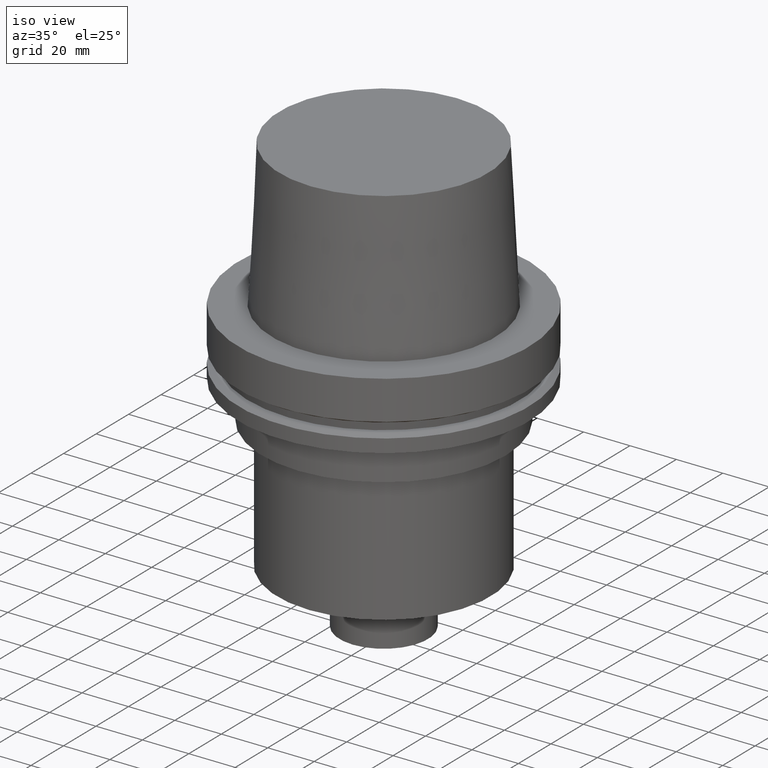
[diagram: clean part render]
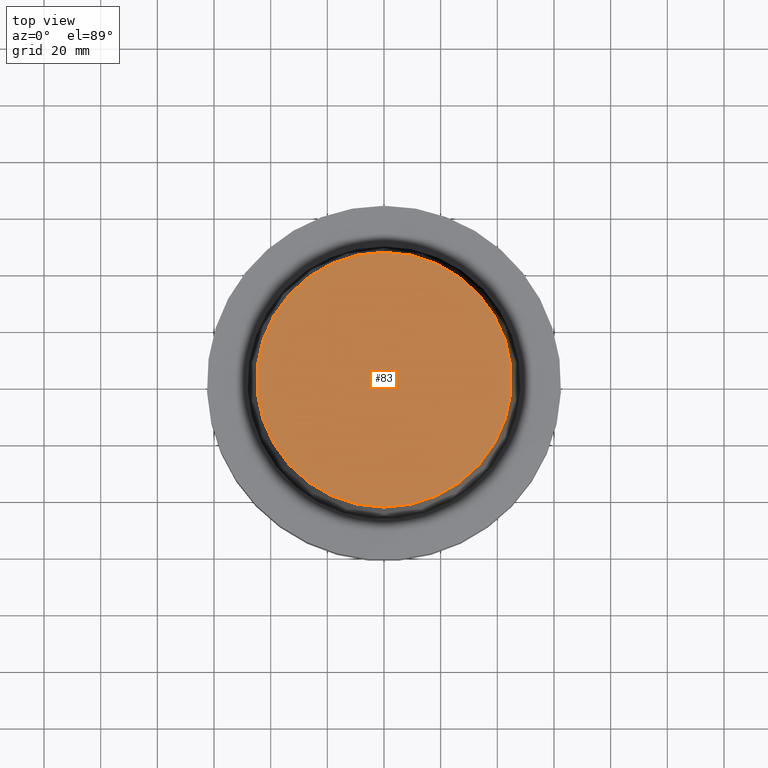
[diagram: tour spotlight — one face highlighted and labeled with its STEP entity id]
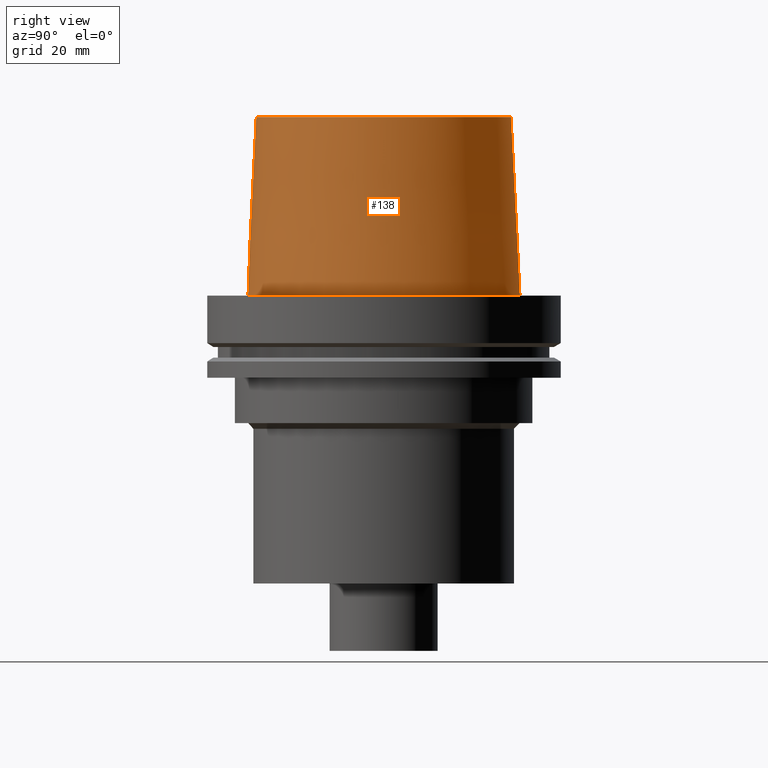
[diagram: tour spotlight — one face highlighted and labeled with its STEP entity id]
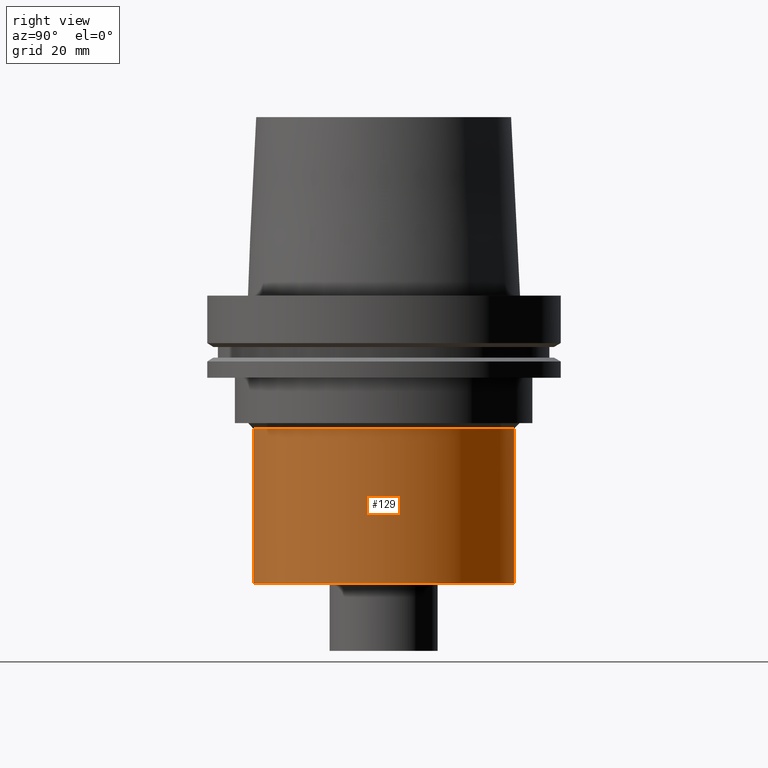
[diagram: tour spotlight — one face highlighted and labeled with its STEP entity id]
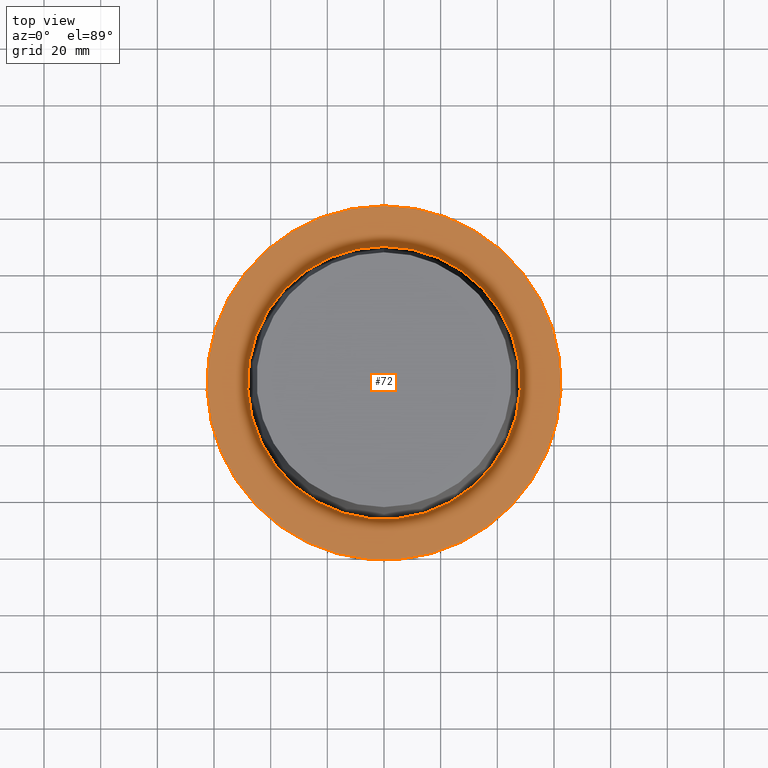
[diagram: tour spotlight — one face highlighted and labeled with its STEP entity id]
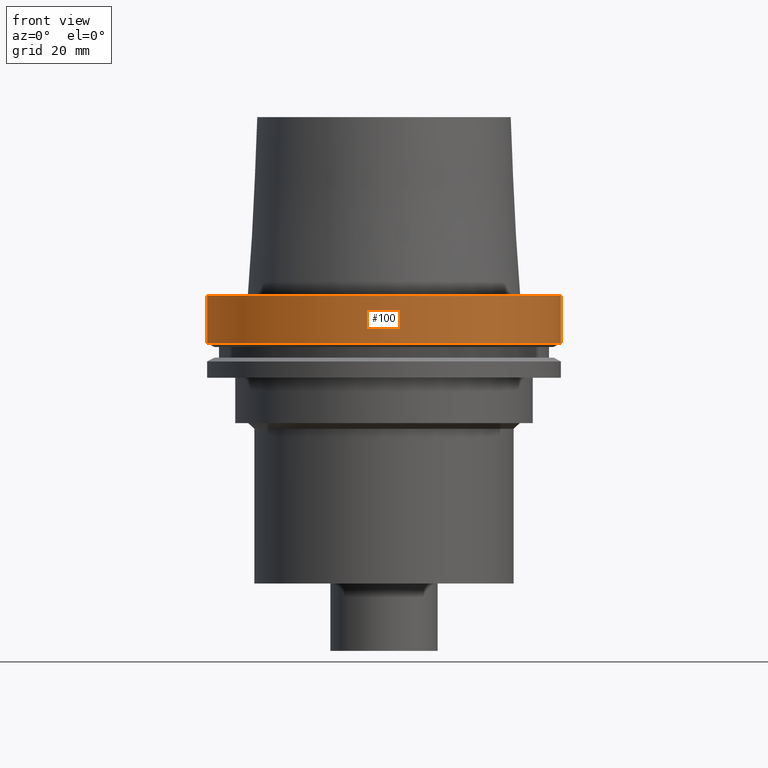
[diagram: tour spotlight — one face highlighted and labeled with its STEP entity id]
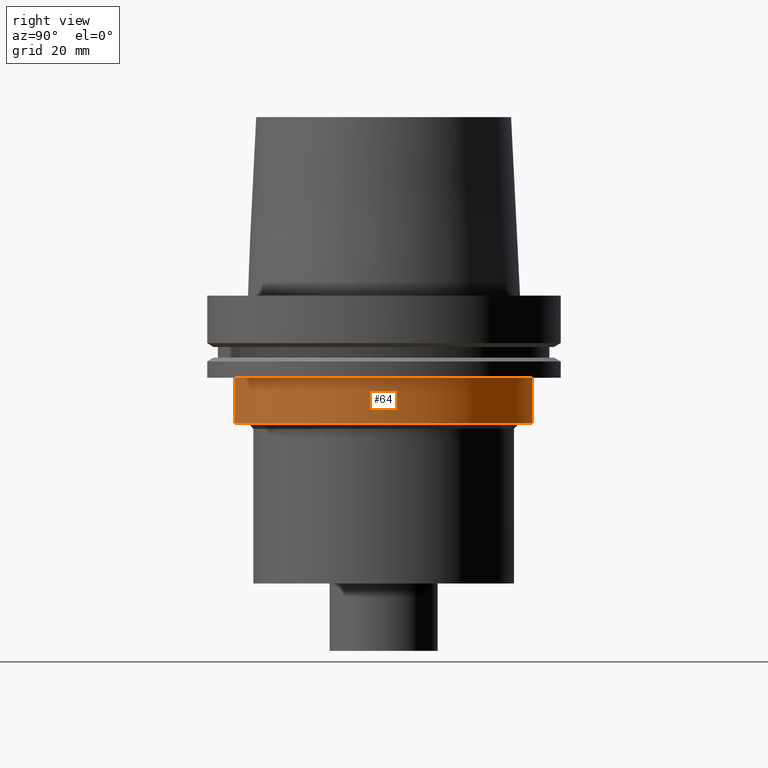
[diagram: tour spotlight — one face highlighted and labeled with its STEP entity id]
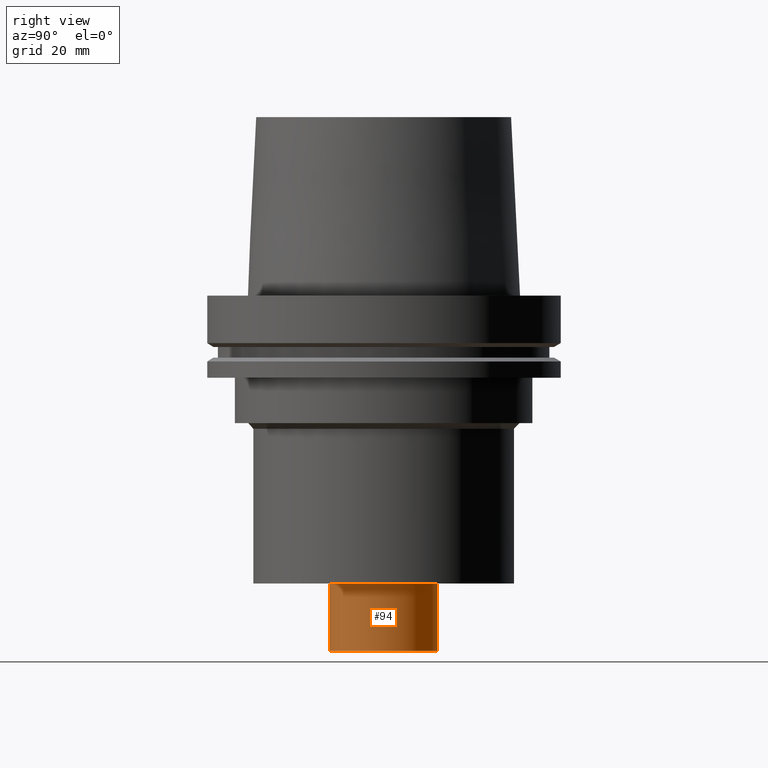
[diagram: tour spotlight — one face highlighted and labeled with its STEP entity id]
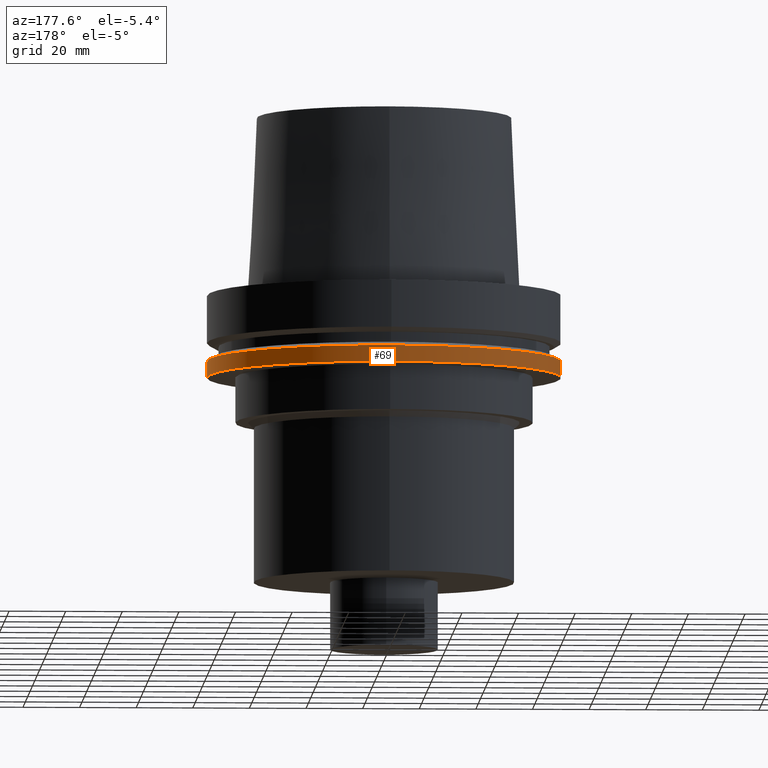
[diagram: tour spotlight — one face highlighted and labeled with its STEP entity id]
A machine part: a face-by-face anatomy tour. The part has 18 B-rep faces; the first image is the clean iso view, then the 8 largest visible faces are spotlighted one at a time (largest first), each with its STEP entity span.

Face 1 — top view, entity #83. In plain terms, the highlighted planar face has unit normal (-0, -0, 1).
Definition (entity closure, byte-faithful):
#83=ADVANCED_FACE('Unnamed[1]',(#202),#203,.T.);
#149=EDGE_CURVE('Unnamed[1]',#306,#306,#307,.T.);
#202=FACE_OUTER_BOUND('',#358,.T.);
#203=PLANE('',#359);
#306=VERTEX_POINT('',#489);
#307=CIRCLE('',#490,44.9779398797591);
#358=EDGE_LOOP('',(#530));
#359=AXIS2_PLACEMENT_3D('',#531,#532,#533);
#489=CARTESIAN_POINT('',(-3.85763741731416E-015,44.9779398797591,62.9999999999999));
#490=AXIS2_PLACEMENT_3D('',#647,#648,#649);
#530=ORIENTED_EDGE('',*,*,#149,.F.);
#531=CARTESIAN_POINT('',(-3.85763741731416E-015,22.4889699398795,62.9999999999999));
#532=DIRECTION('',(-6.12323399573677E-017,-1.22464679914735E-016,1.0));
#533=DIRECTION('',(1.23259516440783E-032,-1.0,-1.22464679914735E-016));
#647=CARTESIAN_POINT('',(-3.85763741731416E-015,-7.71527483462831E-015,62.9999999999999));
#648=DIRECTION('',(6.12323399573677E-017,1.22464679914719E-016,-1.0));
#649=DIRECTION('',(-1.23259516440771E-032,1.0,1.22464679914719E-016));

Face 2 — right view, entity #138. In plain terms, the highlighted conical surface has half-angle 2.868 deg.
Definition (entity closure, byte-faithful):
#133=EDGE_CURVE('Unnamed[1]',#281,#281,#282,.T.);
#138=ADVANCED_FACE('Unnamed[1]',(#288,#289),#290,.T.);
#149=EDGE_CURVE('Unnamed[1]',#306,#306,#307,.T.);
#281=VERTEX_POINT('',#457);
#282=CIRCLE('',#458,48.1342525050097);
#288=FACE_BOUND('',#466,.T.);
#289=FACE_BOUND('',#467,.T.);
#290=CONICAL_SURFACE('',#468,46.5560961923844,0.0500583457465964);
#306=VERTEX_POINT('',#489);
#307=CIRCLE('',#490,44.9779398797591);
#457=CARTESIAN_POINT('',(3.88342032297484E-029,48.1342525050097,-6.38005254174039E-013));
#458=AXIS2_PLACEMENT_3D('',#620,#621,#622);
#466=EDGE_LOOP('',(#627));
#467=EDGE_LOOP('',(#628));
#468=AXIS2_PLACEMENT_3D('',#629,#630,#631);
#489=CARTESIAN_POINT('',(-3.85763741731416E-015,44.9779398797591,62.9999999999999));
#490=AXIS2_PLACEMENT_3D('',#647,#648,#649);
#620=CARTESIAN_POINT('',(3.91573749152705E-029,7.83147498305409E-029,-6.3948846218409E-013));
#621=DIRECTION('',(6.12323399573677E-017,1.22464679914742E-016,-1.0));
#622=DIRECTION('',(-1.23259516440755E-032,1.0,1.22464679914742E-016));
#627=ORIENTED_EDGE('',*,*,#133,.F.);
#628=ORIENTED_EDGE('',*,*,#149,.T.);
#629=CARTESIAN_POINT('',(-1.92881870865706E-015,-3.85763741731411E-015,31.4999999999996));
#630=DIRECTION('',(6.12323399573676E-017,1.22464679914766E-016,-1.0));
#631=DIRECTION('',(-1.23259516440801E-032,1.0,1.22464679914766E-016));
#647=CARTESIAN_POINT('',(-3.85763741731416E-015,-7.71527483462831E-015,62.9999999999999));
#648=DIRECTION('',(6.12323399573677E-017,1.22464679914719E-016,-1.0));
#649=DIRECTION('',(-1.23259516440771E-032,1.0,1.22464679914719E-016));

Face 3 — right view, entity #129. In plain terms, the highlighted cylindrical surface (bore or boss wall) has radius 46 mm, axis along (0, 0, -1).
Definition (entity closure, byte-faithful):
#88=EDGE_CURVE('Unnamed[1]',#210,#210,#211,.T.);
#122=EDGE_CURVE('Unnamed[1]',#264,#264,#265,.T.);
#129=ADVANCED_FACE('Unnamed[1]',(#274,#275),#276,.T.);
#210=VERTEX_POINT('',#368);
#211=CIRCLE('',#369,45.9999999999999);
#264=VERTEX_POINT('',#435);
#265=CIRCLE('',#436,45.9999999999999);
#274=FACE_BOUND('',#448,.T.);
#275=FACE_BOUND('',#449,.T.);
#276=CYLINDRICAL_SURFACE('',#450,45.9999999999999);
#368=CARTESIAN_POINT('',(6.22120573966853E-015,46.0,-101.6));
#369=AXIS2_PLACEMENT_3D('',#540,#541,#542);
#435=CARTESIAN_POINT('',(2.87791997799629E-015,45.9999999999999,-47.0000000000001));
#436=AXIS2_PLACEMENT_3D('',#602,#603,#604);
#448=EDGE_LOOP('',(#612));
#449=EDGE_LOOP('',(#613));
#450=AXIS2_PLACEMENT_3D('',#614,#615,#616);
#540=CARTESIAN_POINT('',(6.22120573966853E-015,1.24424114793371E-014,-101.6));
#541=DIRECTION('',(6.12323399573676E-017,1.22464679914717E-016,-1.0));
#542=DIRECTION('',(-1.23259516440783E-032,1.0,1.22464679914717E-016));
#602=CARTESIAN_POINT('',(2.87791997799629E-015,5.75583995599257E-015,-47.0000000000001));
#603=DIRECTION('',(6.12323399573676E-017,1.22464679914717E-016,-1.0));
#604=DIRECTION('',(-1.23259516440783E-032,1.0,1.22464679914717E-016));
#612=ORIENTED_EDGE('',*,*,#88,.F.);
#613=ORIENTED_EDGE('',*,*,#122,.T.);
#614=CARTESIAN_POINT('',(4.54956285883241E-015,9.09912571766482E-015,-74.2999999999999));
#615=DIRECTION('',(6.12323399573677E-017,1.22464679914717E-016,-1.0));
#616=DIRECTION('',(-1.23259516440783E-032,1.0,1.22464679914717E-016));

Face 4 — top view, entity #72. In plain terms, the highlighted planar face has unit normal (-0, -0, 1).
Definition (entity closure, byte-faithful):
#72=ADVANCED_FACE('Unnamed[1]',(#186,#187),#188,.T.);
#120=EDGE_CURVE('Unnamed[1]',#261,#261,#262,.T.);
#133=EDGE_CURVE('Unnamed[1]',#281,#281,#282,.T.);
#186=FACE_OUTER_BOUND('',#339,.T.);
#187=FACE_BOUND('',#340,.T.);
#188=PLANE('',#341);
#261=VERTEX_POINT('',#431);
#262=CIRCLE('',#432,62.5000000000002);
#281=VERTEX_POINT('',#457);
#282=CIRCLE('',#458,48.1342525050097);
#339=EDGE_LOOP('',(#514));
#340=EDGE_LOOP('',(#515));
#341=AXIS2_PLACEMENT_3D('',#516,#517,#518);
#431=CARTESIAN_POINT('',(-5.58935713239973E-030,62.5000000000002,8.63540424946709E-014));
#432=AXIS2_PLACEMENT_3D('',#599,#600,#601);
#457=CARTESIAN_POINT('',(3.88342032297484E-029,48.1342525050097,-6.38005254174039E-013));
#458=AXIS2_PLACEMENT_3D('',#620,#621,#622);
#514=ORIENTED_EDGE('',*,*,#120,.F.);
#515=ORIENTED_EDGE('',*,*,#133,.T.);
#516=CARTESIAN_POINT('',(1.66224230486744E-029,55.317126252505,-2.75825605839684E-013));
#517=DIRECTION('',(-6.12323399573677E-017,-5.04226666187264E-014,1.0));
#518=DIRECTION('',(3.09232501668564E-030,-1.0,-5.04226666187264E-014));
#599=CARTESIAN_POINT('',(-5.22098332203606E-030,-1.04419666440721E-029,8.5265128291212E-014));
#600=DIRECTION('',(6.12323399573677E-017,1.22464679914723E-016,-1.0));
#601=DIRECTION('',(-1.23259516440783E-032,1.0,1.22464679914723E-016));
#620=CARTESIAN_POINT('',(3.91573749152705E-029,7.83147498305409E-029,-6.3948846218409E-013));
#621=DIRECTION('',(6.12323399573677E-017,1.22464679914742E-016,-1.0));
#622=DIRECTION('',(-1.23259516440755E-032,1.0,1.22464679914742E-016));

Face 5 — front view, entity #100. In plain terms, the highlighted cylindrical surface (bore or boss wall) has radius 62.5 mm, axis along (0, 0, -1).
Definition (entity closure, byte-faithful):
#100=ADVANCED_FACE('Unnamed[1]',(#229,#230),#231,.T.);
#120=EDGE_CURVE('Unnamed[1]',#261,#261,#262,.T.);
#140=EDGE_CURVE('Unnamed[1]',#292,#292,#293,.T.);
#229=FACE_BOUND('',#391,.T.);
#230=FACE_BOUND('',#392,.T.);
#231=CYLINDRICAL_SURFACE('',#393,62.5000000000001);
#261=VERTEX_POINT('',#431);
#262=CIRCLE('',#432,62.5000000000002);
#292=VERTEX_POINT('',#471);
#293=CIRCLE('',#472,62.5);
#391=EDGE_LOOP('',(#562));
#392=EDGE_LOOP('',(#563));
#393=AXIS2_PLACEMENT_3D('',#564,#565,#566);
#431=CARTESIAN_POINT('',(-5.58935713239973E-030,62.5000000000002,8.63540424946709E-014));
#432=AXIS2_PLACEMENT_3D('',#599,#600,#601);
#471=CARTESIAN_POINT('',(1.02578894188644E-015,62.5,-16.7524047358084));
#472=AXIS2_PLACEMENT_3D('',#632,#633,#634);
#562=ORIENTED_EDGE('',*,*,#140,.F.);
#563=ORIENTED_EDGE('',*,*,#120,.T.);
#564=CARTESIAN_POINT('',(5.12894470943215E-016,1.02578894188643E-015,-8.37620236790416));
#565=DIRECTION('',(6.12323399573677E-017,1.22464679914723E-016,-1.0));
#566=DIRECTION('',(-1.23259516440783E-032,1.0,1.22464679914723E-016));
#599=CARTESIAN_POINT('',(-5.22098332203606E-030,-1.04419666440721E-029,8.5265128291212E-014));
#600=DIRECTION('',(6.12323399573677E-017,1.22464679914723E-016,-1.0));
#601=DIRECTION('',(-1.23259516440783E-032,1.0,1.22464679914723E-016));
#632=CARTESIAN_POINT('',(1.02578894188644E-015,2.05157788377287E-015,-16.7524047358084));
#633=DIRECTION('',(6.12323399573676E-017,1.22464679914723E-016,-1.0));
#634=DIRECTION('',(-1.23259516440783E-032,1.0,1.22464679914723E-016));

Face 6 — right view, entity #64. In plain terms, the highlighted cylindrical surface (bore or boss wall) has radius 52.5 mm, axis along (0, 0, -1).
Definition (entity closure, byte-faithful):
#64=ADVANCED_FACE('Unnamed[1]',(#173,#174),#175,.T.);
#108=EDGE_CURVE('Unnamed[1]',#243,#243,#244,.T.);
#118=EDGE_CURVE('Unnamed[1]',#258,#258,#259,.T.);
#173=FACE_BOUND('',#323,.T.);
#174=FACE_BOUND('',#324,.T.);
#175=CYLINDRICAL_SURFACE('',#325,52.5000000000001);
#243=VERTEX_POINT('',#408);
#244=CIRCLE('',#409,52.5000000000003);
#258=VERTEX_POINT('',#427);
#259=CIRCLE('',#428,52.4999999999998);
#323=EDGE_LOOP('',(#499));
#324=EDGE_LOOP('',(#500));
#325=AXIS2_PLACEMENT_3D('',#501,#502,#503);
#408=CARTESIAN_POINT('',(1.77573785876367E-015,52.5000000000003,-29.0000000000001));
#409=AXIS2_PLACEMENT_3D('',#579,#580,#581);
#427=CARTESIAN_POINT('',(2.75545529808155E-015,52.4999999999998,-45.0000000000001));
#428=AXIS2_PLACEMENT_3D('',#596,#597,#598);
#499=ORIENTED_EDGE('',*,*,#118,.F.);
#500=ORIENTED_EDGE('',*,*,#108,.T.);
#501=CARTESIAN_POINT('',(2.26559657842261E-015,4.53119315684522E-015,-37.0000000000001));
#502=DIRECTION('',(6.12323399573677E-017,1.22464679914708E-016,-1.0));
#503=DIRECTION('',(-1.23259516440783E-032,1.0,1.22464679914708E-016));
#579=CARTESIAN_POINT('',(1.77573785876367E-015,3.55147571752733E-015,-29.0000000000001));
#580=DIRECTION('',(6.12323399573677E-017,1.22464679914708E-016,-1.0));
#581=DIRECTION('',(-1.23259516440782E-032,1.0,1.22464679914708E-016));
#596=CARTESIAN_POINT('',(2.75545529808155E-015,5.5109105961631E-015,-45.0000000000001));
#597=DIRECTION('',(6.12323399573677E-017,1.22464679914709E-016,-1.0));
#598=DIRECTION('',(-1.23259516440784E-032,1.0,1.22464679914709E-016));

Face 7 — right view, entity #94. In plain terms, the highlighted cylindrical surface (bore or boss wall) has radius 19.05 mm, axis along (0, 0, -1).
Definition (entity closure, byte-faithful):
#74=EDGE_CURVE('Unnamed[1]',#190,#190,#191,.T.);
#94=ADVANCED_FACE('Unnamed[1]',(#219,#220),#221,.T.);
#131=EDGE_CURVE('Unnamed[1]',#278,#278,#279,.T.);
#190=VERTEX_POINT('',#344);
#191=CIRCLE('',#345,19.0499999999996);
#219=FACE_BOUND('',#379,.T.);
#220=FACE_BOUND('',#380,.T.);
#221=CYLINDRICAL_SURFACE('',#381,19.0499999999998);
#278=VERTEX_POINT('',#453);
#279=CIRCLE('',#454,19.05);
#344=CARTESIAN_POINT('',(7.67853543065387E-015,19.0499999999996,-125.399999999999));
#345=AXIS2_PLACEMENT_3D('',#519,#520,#521);
#379=EDGE_LOOP('',(#550));
#380=EDGE_LOOP('',(#551));
#381=AXIS2_PLACEMENT_3D('',#552,#553,#554);
#453=CARTESIAN_POINT('',(6.22120573966853E-015,19.05,-101.6));
#454=AXIS2_PLACEMENT_3D('',#617,#618,#619);
#519=CARTESIAN_POINT('',(7.67853543065387E-015,1.53570708613077E-014,-125.399999999999));
#520=DIRECTION('',(6.12323399573677E-017,1.224646799147E-016,-1.0));
#521=DIRECTION('',(-1.23259516440805E-032,1.0,1.224646799147E-016));
#550=ORIENTED_EDGE('',*,*,#74,.F.);
#551=ORIENTED_EDGE('',*,*,#131,.T.);
#552=CARTESIAN_POINT('',(6.9498705851612E-015,1.38997411703224E-014,-113.5));
#553=DIRECTION('',(6.12323399573677E-017,1.22464679914699E-016,-1.0));
#554=DIRECTION('',(-1.23259516440803E-032,1.0,1.22464679914699E-016));
#617=CARTESIAN_POINT('',(6.22120573966853E-015,1.24424114793371E-014,-101.6));
#618=DIRECTION('',(6.12323399573676E-017,1.22464679914697E-016,-1.0));
#619=DIRECTION('',(-1.23259516440802E-032,1.0,1.22464679914697E-016));

Face 8 — auxiliary view, entity #69. In plain terms, the highlighted cylindrical surface (bore or boss wall) has radius 62.5 mm, axis along (0, 0, -1).
Definition (entity closure, byte-faithful):
#69=ADVANCED_FACE('Unnamed[1]',(#181,#182),#183,.T.);
#126=EDGE_CURVE('Unnamed[1]',#270,#270,#271,.T.);
#135=EDGE_CURVE('Unnamed[1]',#284,#284,#285,.T.);
#181=FACE_BOUND('',#333,.T.);
#182=FACE_BOUND('',#334,.T.);
#183=CYLINDRICAL_SURFACE('',#335,62.5);
#270=VERTEX_POINT('',#443);
#271=CIRCLE('',#444,62.5);
#284=VERTEX_POINT('',#461);
#285=CIRCLE('',#462,62.5);
#333=EDGE_LOOP('',(#508));
#334=EDGE_LOOP('',(#509));
#335=AXIS2_PLACEMENT_3D('',#510,#511,#512);
#443=CARTESIAN_POINT('',(1.42350465640827E-015,62.5,-23.2475952641916));
#444=AXIS2_PLACEMENT_3D('',#608,#609,#610);
#461=CARTESIAN_POINT('',(1.77573785876367E-015,62.5,-29.0000000000001));
#462=AXIS2_PLACEMENT_3D('',#623,#624,#625);
#508=ORIENTED_EDGE('',*,*,#135,.F.);
#509=ORIENTED_EDGE('',*,*,#126,.T.);
#510=CARTESIAN_POINT('',(1.59962125758597E-015,3.19924251517194E-015,-26.1237976320958));
#511=DIRECTION('',(6.12323399573677E-017,1.22464679914723E-016,-1.0));
#512=DIRECTION('',(-1.23259516440783E-032,1.0,1.22464679914723E-016));
#608=CARTESIAN_POINT('',(1.42350465640827E-015,2.84700931281654E-015,-23.2475952641916));
#609=DIRECTION('',(6.12323399573677E-017,1.22464679914723E-016,-1.0));
#610=DIRECTION('',(-1.23259516440783E-032,1.0,1.22464679914723E-016));
#623=CARTESIAN_POINT('',(1.77573785876367E-015,3.55147571752733E-015,-29.0000000000001));
#624=DIRECTION('',(6.12323399573677E-017,1.22464679914723E-016,-1.0));
#625=DIRECTION('',(-1.23259516440783E-032,1.0,1.22464679914723E-016));